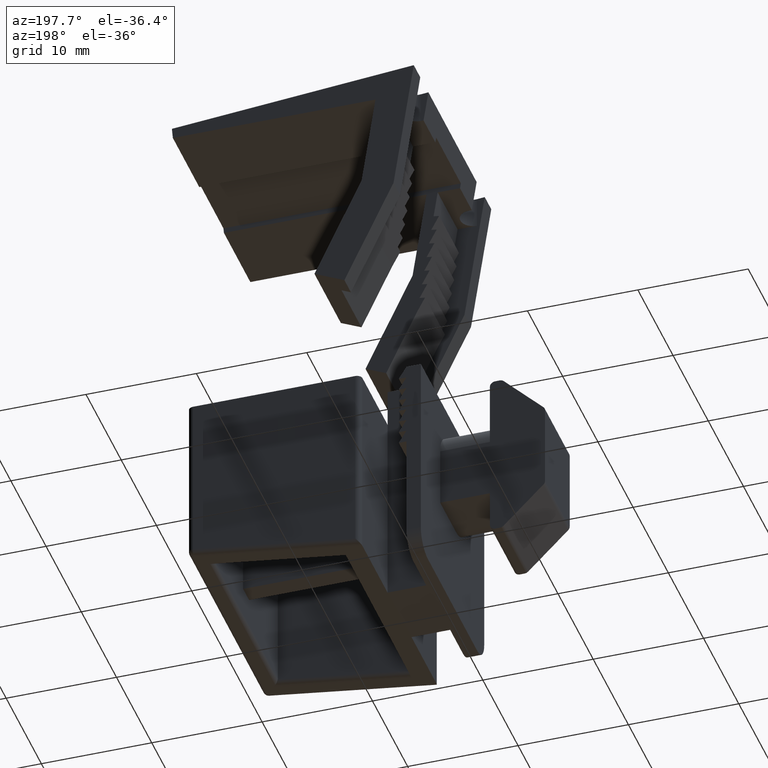
[diagram: clean part render]
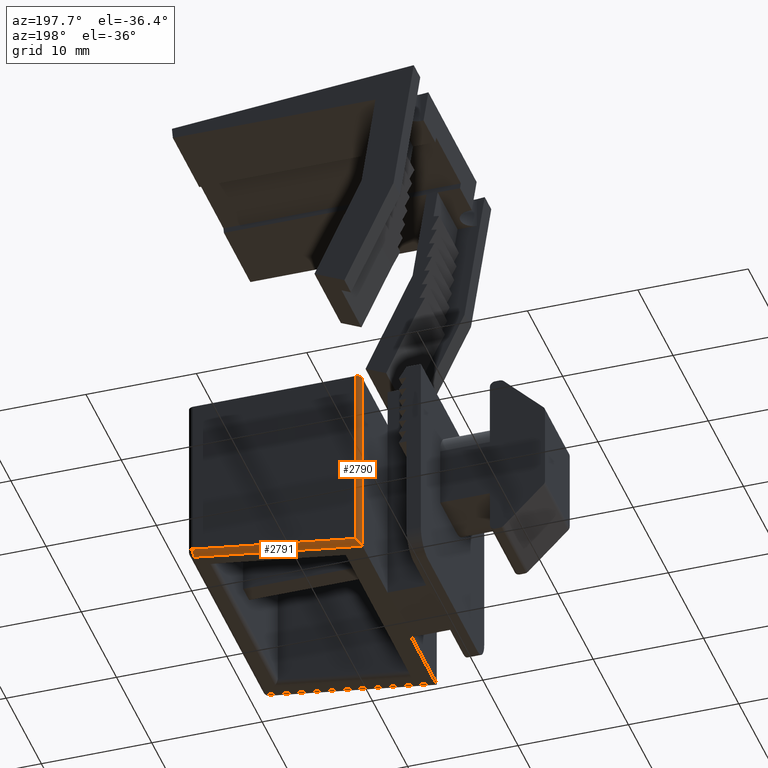
[diagram: same view with one multi-face feature highlighted, each face labeled with its STEP entity id]
A machine part, auxiliary view. The highlighted faces form ONE feature: a constant-radius fillet chain: 2 tangent blend faces with common blend radius 0.5 mm. The faces share edges in the B-rep.
Their STEP definitions:
[1] entity #2791 (Cylinder):
#164=FACE_OUTER_BOUND('',#314,.T.);
#314=EDGE_LOOP('',(#1969,#1970,#1971,#1972));
#463=CIRCLE('',#3015,0.5);
#494=ELLIPSE('',#3019,0.76469660468617,0.5);
#504=LINE('',#3987,#877);
#514=LINE('',#4021,#887);
#877=VECTOR('',#3222,10.);
#887=VECTOR('',#3258,10.);
#1254=VERTEX_POINT('',#3985);
#1255=VERTEX_POINT('',#3986);
#1263=VERTEX_POINT('',#4006);
#1266=VERTEX_POINT('',#4017);
#1528=EDGE_CURVE('',#1254,#1255,#504,.T.);
#1540=EDGE_CURVE('',#1263,#1254,#463,.F.);
#1545=EDGE_CURVE('',#1266,#1255,#494,.T.);
#1546=EDGE_CURVE('',#1266,#1263,#514,.T.);
#1969=ORIENTED_EDGE('',*,*,#1546,.T.);
#1970=ORIENTED_EDGE('',*,*,#1540,.T.);
#1971=ORIENTED_EDGE('',*,*,#1528,.T.);
#1972=ORIENTED_EDGE('',*,*,#1545,.F.);
#2766=CYLINDRICAL_SURFACE('',#3020,0.5);
#2791=ADVANCED_FACE('',(#164),#2766,.T.);
#3015=AXIS2_PLACEMENT_3D('',#4009,#3243,#3244);
#3019=AXIS2_PLACEMENT_3D('',#4019,#3254,#3255);
#3020=AXIS2_PLACEMENT_3D('',#4020,#3256,#3257);
#3222=DIRECTION('',(-0.989439030001383,0.,0.144949666815489));
#3243=DIRECTION('center_axis',(0.989439030001385,0.,-0.144949666815482));
#3244=DIRECTION('ref_axis',(0.,-1.,0.));
#3254=DIRECTION('center_axis',(-0.756620666786035,0.,-0.653854086621974));
#3255=DIRECTION('ref_axis',(-0.653854086621974,0.,0.756620666786035));
#3256=DIRECTION('center_axis',(-0.989439030001383,0.,0.144949666815489));
#3257=DIRECTION('ref_axis',(0.102494892335964,-0.707106781186551,0.699639047684615));
#3258=DIRECTION('',(0.989439030001383,0.,-0.144949666815489));
#3985=CARTESIAN_POINT('',(20.0724748334077,-10.5,17.2626310753606));
#3986=CARTESIAN_POINT('',(4.8,-10.5,19.5));
#3987=CARTESIAN_POINT('',(9.19073855337558,-10.5,18.8567707851743));
#4006=CARTESIAN_POINT('',(20.,-11.,16.76791156036));
#4009=CARTESIAN_POINT('Origin',(20.,-10.5,16.76791156036));
#4017=CARTESIAN_POINT('',(5.3,-11.,18.9214147450733));
#4019=CARTESIAN_POINT('Origin',(5.3,-10.5,18.9214147450733));
#4020=CARTESIAN_POINT('Origin',(9.11826371996784,-10.5,18.3620512701736));
#4021=CARTESIAN_POINT('',(9.11826371996784,-11.,18.3620512701736));
[2] entity #2790 (Cylinder):
#163=FACE_OUTER_BOUND('',#313,.T.);
#313=EDGE_LOOP('',(#1965,#1966,#1967,#1968));
#464=CIRCLE('',#3018,0.5);
#494=ELLIPSE('',#3019,0.76469660468617,0.5);
#512=LINE('',#4014,#885);
#513=LINE('',#4018,#886);
#885=VECTOR('',#3250,10.);
#886=VECTOR('',#3253,10.);
#1255=VERTEX_POINT('',#3986);
#1264=VERTEX_POINT('',#4013);
#1265=VERTEX_POINT('',#4015);
#1266=VERTEX_POINT('',#4017);
#1542=EDGE_CURVE('',#1255,#1264,#512,.T.);
#1543=EDGE_CURVE('',#1264,#1265,#464,.T.);
#1544=EDGE_CURVE('',#1265,#1266,#513,.T.);
#1545=EDGE_CURVE('',#1266,#1255,#494,.T.);
#1965=ORIENTED_EDGE('',*,*,#1542,.T.);
#1966=ORIENTED_EDGE('',*,*,#1543,.T.);
#1967=ORIENTED_EDGE('',*,*,#1544,.T.);
#1968=ORIENTED_EDGE('',*,*,#1545,.T.);
#2765=CYLINDRICAL_SURFACE('',#3017,0.5);
#2790=ADVANCED_FACE('',(#163),#2765,.T.);
#3017=AXIS2_PLACEMENT_3D('',#4012,#3248,#3249);
#3018=AXIS2_PLACEMENT_3D('',#4016,#3251,#3252);
#3019=AXIS2_PLACEMENT_3D('',#4019,#3254,#3255);
#3248=DIRECTION('center_axis',(0.,0.,-1.));
#3249=DIRECTION('ref_axis',(-0.707106781186546,-0.707106781186549,0.));
#3250=DIRECTION('',(0.,0.,-1.));
#3251=DIRECTION('center_axis',(-3.53574211664063E-17,0.,1.));
#3252=DIRECTION('ref_axis',(-0.707106781186546,-0.707106781186549,0.));
#3253=DIRECTION('',(0.,0.,1.));
#3254=DIRECTION('center_axis',(-0.756620666786035,0.,-0.653854086621974));
#3255=DIRECTION('ref_axis',(-0.653854086621974,0.,0.756620666786035));
#3986=CARTESIAN_POINT('',(4.8,-10.5,19.5));
#4012=CARTESIAN_POINT('Origin',(5.3,-10.5,5.73344712558717));
#4013=CARTESIAN_POINT('',(4.8,-10.5,1.5));
#4014=CARTESIAN_POINT('',(4.8,-10.5,5.73344712558717));
#4015=CARTESIAN_POINT('',(5.3,-11.,1.5));
#4016=CARTESIAN_POINT('Origin',(5.3,-10.5,1.5));
#4017=CARTESIAN_POINT('',(5.3,-11.,18.9214147450733));
#4018=CARTESIAN_POINT('',(5.3,-11.,5.73344712558717));
#4019=CARTESIAN_POINT('Origin',(5.3,-10.5,18.9214147450733));